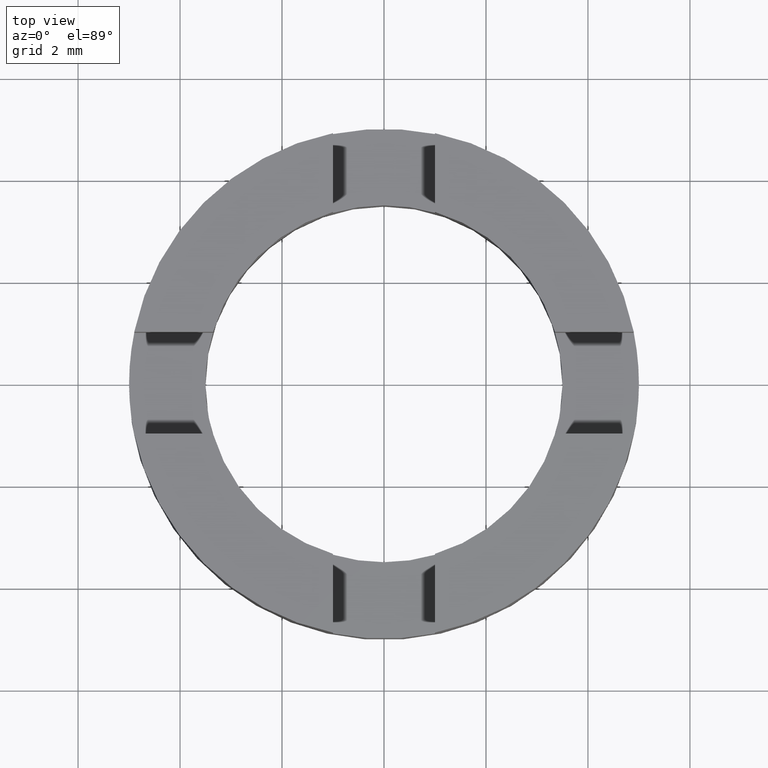
[diagram: clean part render]
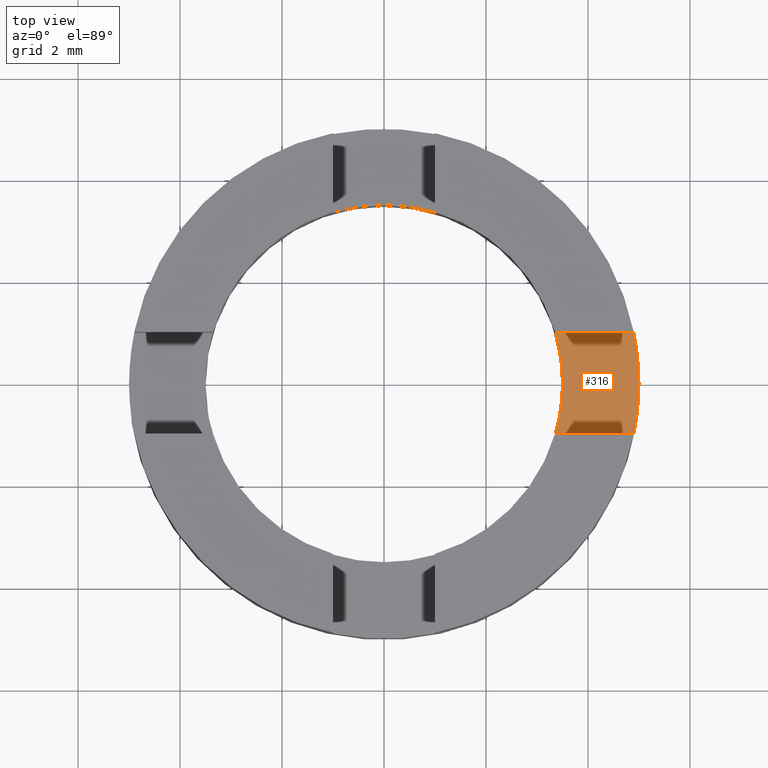
[diagram: same view with one face highlighted and labeled with its STEP entity id]
A machine part, top view. The second image highlights one B-rep face of the part: STEP entity #316.
In plain terms, the highlighted planar face has unit normal (0, 0, -1).
Its self-contained STEP definition (entity closure, byte-faithful):
#17 = EDGE_CURVE ( 'NONE', #327, #613, #662, .T. ) ;
#31 = VERTEX_POINT ( 'NONE', #193 ) ;
#35 = AXIS2_PLACEMENT_3D ( 'NONE', #549, #47, #133 ) ;
#47 = DIRECTION ( 'NONE',  ( 0.000000000000000000, 0.000000000000000000, -1.000000000000000000 ) ) ;
#99 = AXIS2_PLACEMENT_3D ( 'NONE', #488, #540, #196 ) ;
#100 = CIRCLE ( 'NONE', #99, 3.500000000000000000 ) ;
#112 = EDGE_LOOP ( 'NONE', ( #628, #647, #609, #447, #588, #382 ) ) ;
#123 = DIRECTION ( 'NONE',  ( -1.000000000000000000, -1.279323200775836975E-16, -0.000000000000000000 ) ) ;
#132 = CARTESIAN_POINT ( 'NONE',  ( 3.354101966249671385, 1.000000000000045297, 1.500000000000000000 ) ) ;
#133 = DIRECTION ( 'NONE',  ( -1.000000000000000000, 0.000000000000000000, 0.000000000000000000 ) ) ;
#161 = CARTESIAN_POINT ( 'NONE',  ( 3.354101966249698030, -0.9999999999999547029, 1.500000000000000000 ) ) ;
#193 = CARTESIAN_POINT ( 'NONE',  ( 5.000000000000000000, 6.123233995736766282E-16, 1.500000000000000000 ) ) ;
#196 = DIRECTION ( 'NONE',  ( -1.000000000000000000, 0.000000000000000000, 0.000000000000000000 ) ) ;
#216 = DIRECTION ( 'NONE',  ( -1.000000000000000000, 0.000000000000000000, -0.000000000000000000 ) ) ;
#231 = DIRECTION ( 'NONE',  ( 0.000000000000000000, 0.000000000000000000, -1.000000000000000000 ) ) ;
#267 = LINE ( 'NONE', #443, #771 ) ;
#274 = CARTESIAN_POINT ( 'NONE',  ( 3.500000000000000000, 4.286263797015736595E-16, 1.500000000000000000 ) ) ;
#275 = EDGE_CURVE ( 'NONE', #354, #389, #100, .T. ) ;
#280 = DIRECTION ( 'NONE',  ( -1.000000000000000000, 0.000000000000000000, 0.000000000000000000 ) ) ;
#292 = DIRECTION ( 'NONE',  ( 1.000000000000000000, 1.279323200775837468E-16, 0.000000000000000000 ) ) ;
#316 = ADVANCED_FACE ( 'NONE', ( #372 ), #465, .F. ) ;
#325 = DIRECTION ( 'NONE',  ( 0.000000000000000000, 0.000000000000000000, -1.000000000000000000 ) ) ;
#327 = VERTEX_POINT ( 'NONE', #716 ) ;
#329 = CARTESIAN_POINT ( 'NONE',  ( 0.000000000000000000, 0.000000000000000000, 1.500000000000000000 ) ) ;
#354 = VERTEX_POINT ( 'NONE', #274 ) ;
#372 = FACE_OUTER_BOUND ( 'NONE', #112, .T. ) ;
#381 = VECTOR ( 'NONE', #123, 1000.000000000000000 ) ;
#382 = ORIENTED_EDGE ( 'NONE', *, *, #526, .F. ) ;
#389 = VERTEX_POINT ( 'NONE', #161 ) ;
#394 = CIRCLE ( 'NONE', #35, 3.500000000000000000 ) ;
#443 = CARTESIAN_POINT ( 'NONE',  ( 3.305037895306199847, -0.9999999999999547029, 1.500000000000000000 ) ) ;
#447 = ORIENTED_EDGE ( 'NONE', *, *, #558, .T. ) ;
#451 = EDGE_CURVE ( 'NONE', #613, #354, #394, .T. ) ;
#465 = PLANE ( 'NONE',  #596 ) ;
#480 = DIRECTION ( 'NONE',  ( -1.000000000000000000, 0.000000000000000000, 0.000000000000000000 ) ) ;
#488 = CARTESIAN_POINT ( 'NONE',  ( 0.000000000000000000, 0.000000000000000000, 1.500000000000000000 ) ) ;
#502 = CARTESIAN_POINT ( 'NONE',  ( 4.898979485566365533, -0.9999999999999544809, 1.500000000000000000 ) ) ;
#510 = CIRCLE ( 'NONE', #713, 5.000000000000000000 ) ;
#517 = CIRCLE ( 'NONE', #701, 5.000000000000000000 ) ;
#526 = EDGE_CURVE ( 'NONE', #327, #31, #517, .T. ) ;
#539 = DIRECTION ( 'NONE',  ( 0.000000000000000000, 0.000000000000000000, -1.000000000000000000 ) ) ;
#540 = DIRECTION ( 'NONE',  ( 0.000000000000000000, 0.000000000000000000, -1.000000000000000000 ) ) ;
#549 = CARTESIAN_POINT ( 'NONE',  ( 0.000000000000000000, 0.000000000000000000, 1.500000000000000000 ) ) ;
#558 = EDGE_CURVE ( 'NONE', #389, #657, #267, .T. ) ;
#588 = ORIENTED_EDGE ( 'NONE', *, *, #621, .F. ) ;
#596 = AXIS2_PLACEMENT_3D ( 'NONE', #329, #325, #216 ) ;
#601 = CARTESIAN_POINT ( 'NONE',  ( 0.000000000000000000, 0.000000000000000000, 1.500000000000000000 ) ) ;
#609 = ORIENTED_EDGE ( 'NONE', *, *, #275, .T. ) ;
#613 = VERTEX_POINT ( 'NONE', #132 ) ;
#621 = EDGE_CURVE ( 'NONE', #31, #657, #510, .T. ) ;
#628 = ORIENTED_EDGE ( 'NONE', *, *, #17, .T. ) ;
#647 = ORIENTED_EDGE ( 'NONE', *, *, #451, .T. ) ;
#657 = VERTEX_POINT ( 'NONE', #502 ) ;
#662 = LINE ( 'NONE', #749, #381 ) ;
#701 = AXIS2_PLACEMENT_3D ( 'NONE', #770, #539, #480 ) ;
#713 = AXIS2_PLACEMENT_3D ( 'NONE', #601, #231, #280 ) ;
#716 = CARTESIAN_POINT ( 'NONE',  ( 4.898979485566346881, 1.000000000000045519, 1.500000000000000000 ) ) ;
#749 = CARTESIAN_POINT ( 'NONE',  ( 3.305037895306199403, 1.000000000000045297, 1.500000000000000000 ) ) ;
#770 = CARTESIAN_POINT ( 'NONE',  ( 0.000000000000000000, 0.000000000000000000, 1.500000000000000000 ) ) ;
#771 = VECTOR ( 'NONE', #292, 1000.000000000000000 ) ;